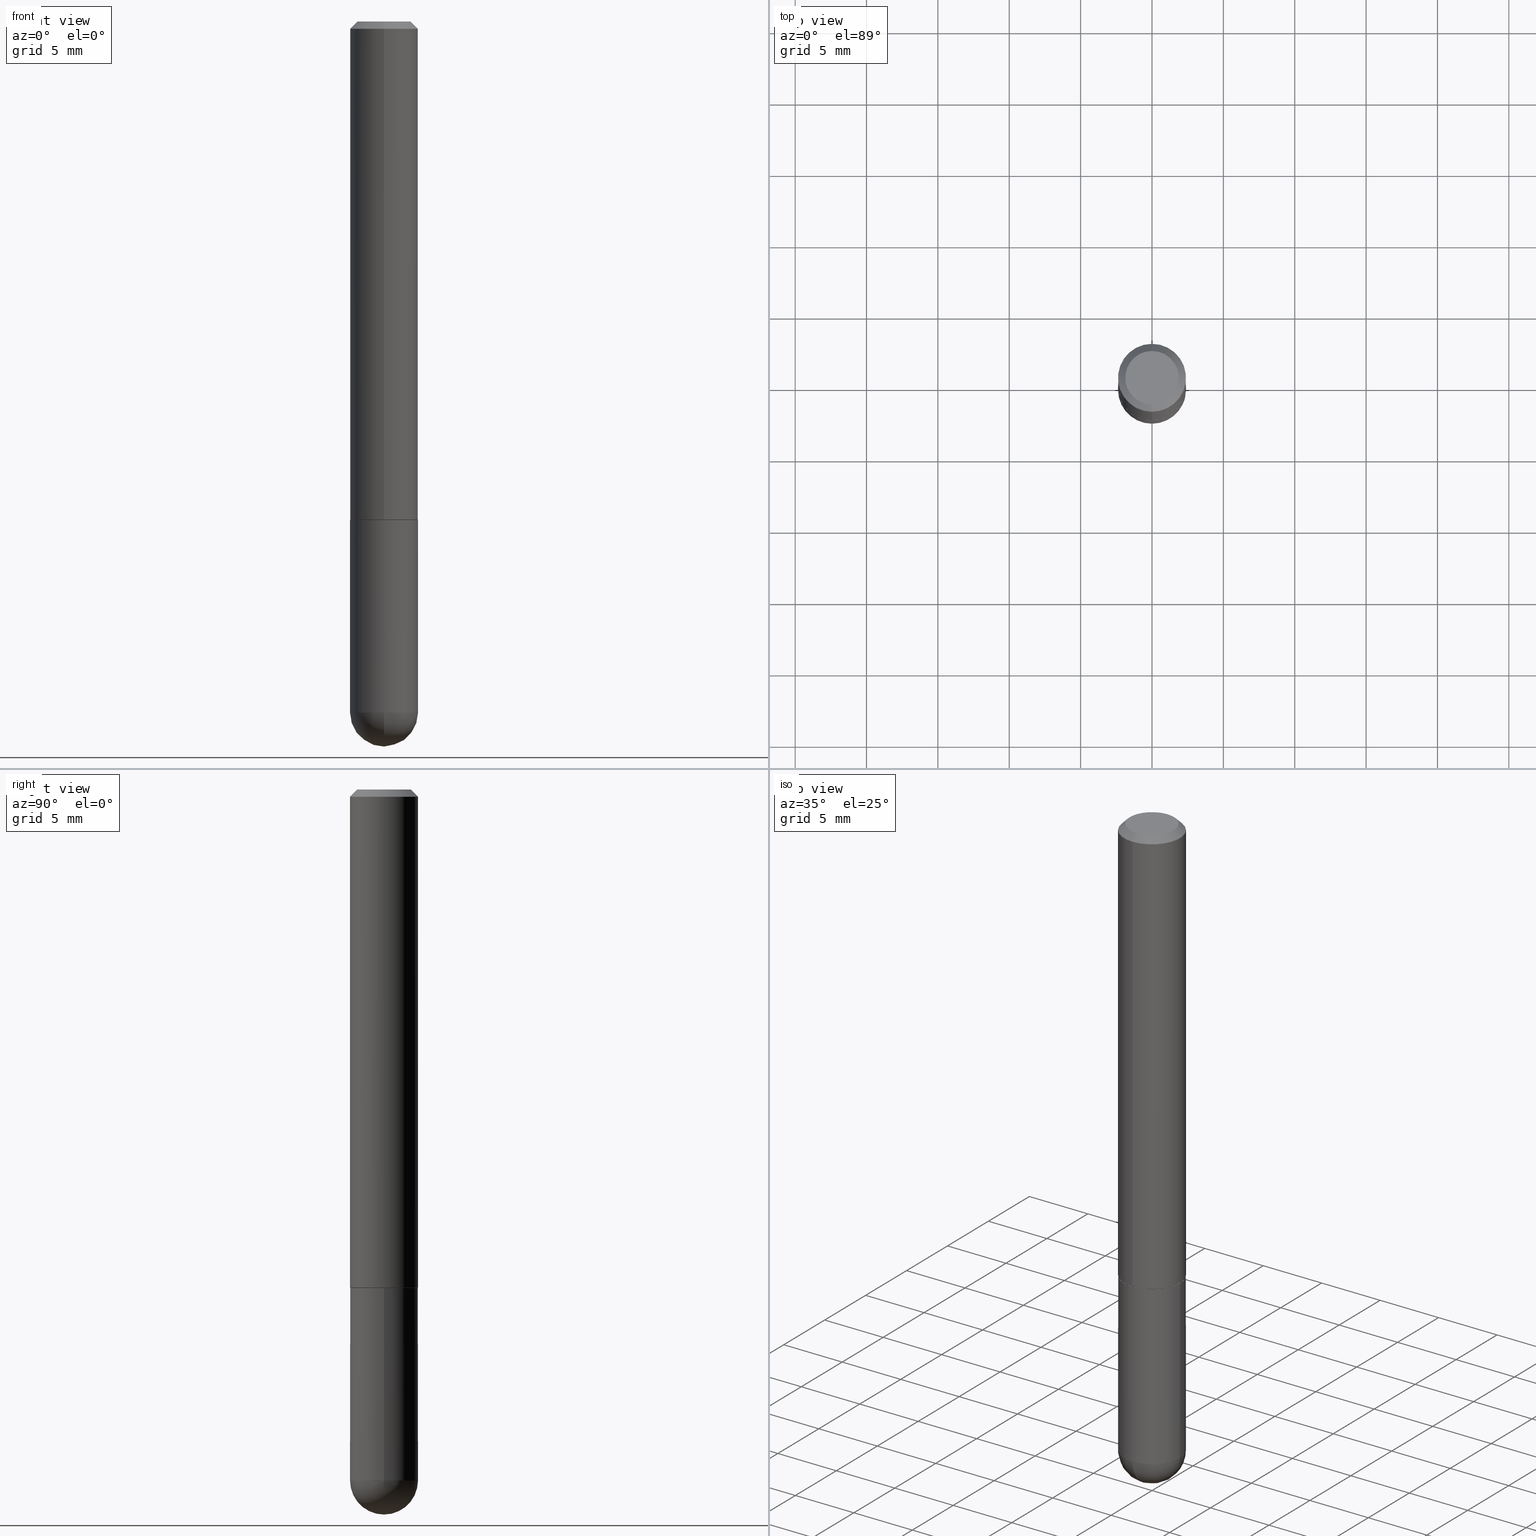
[diagram: canonical four-view strip — front | top / right | iso, engineering-drawing reading convention]
A machine part, canonical four-view strip (front | top / right | iso — engineering-drawing reading convention). The complete STEP part file that produces these views, byte-faithful:
ISO-10303-21;
HEADER;
FILE_DESCRIPTION (( 'STEP AP203' ),
    '1' );
FILE_NAME ('39124.STEP',
    '2024-02-21T19:22:24',
    ( '' ),
    ( '' ),
    'SwSTEP 2.0',
    'SolidWorks 2023',
    '' );
FILE_SCHEMA (( 'CONFIG_CONTROL_DESIGN' ));
ENDSEC;

DATA;
#1 = CARTESIAN_POINT ( 'NONE',  ( 4.330555133876530390E-29, -7.129818670309794948E-15, -1.906250000000000000 ) ) ;
#2 = DIRECTION ( 'NONE',  ( -4.937700262164843076E-15, -0.7071067811865873187, 0.7071067811865077157 ) ) ;
#3 = AXIS2_PLACEMENT_3D ( 'NONE', #318, #252, #277 ) ;
#4 = DIRECTION ( 'NONE',  ( -2.445468806185136597E-29, 3.491481338843145583E-15, 1.000000000000000000 ) ) ;
#5 = DIRECTION ( 'NONE',  ( -2.444797333483953649E-29, 3.492442925969092226E-15, 1.000000000000000000 ) ) ;
#6 = EDGE_LOOP ( 'NONE', ( #208, #407, #171, #248, #200 ) ) ;
#7 = DIRECTION ( 'NONE',  ( -6.982962677686265922E-15, -1.000000000000000000, 2.945388672414299892E-15 ) ) ;
#8 = ORIENTED_EDGE ( 'NONE', *, *, #254, .T. ) ;
#9 = VECTOR ( 'NONE', #18, 39.37007874015748143 ) ;
#10 = LOCAL_TIME ( 14, 22, 24.00000000000000000, #305 ) ;
#11 = EDGE_CURVE ( 'NONE', #240, #265, #228, .T. ) ;
#12 = ORIENTED_EDGE ( 'NONE', *, *, #333, .T. ) ;
#13 = ORIENTED_EDGE ( 'NONE', *, *, #193, .T. ) ;
#14 = MECHANICAL_CONTEXT ( 'NONE', #219, 'mechanical' ) ;
#15 = ORIENTED_EDGE ( 'NONE', *, *, #326, .T. ) ;
#16 = APPROVAL_PERSON_ORGANIZATION ( #124, #149, #342 ) ;
#17 = PERSON_AND_ORGANIZATION ( #257, #185 ) ;
#18 = DIRECTION ( 'NONE',  ( 4.937700262164540154E-15, 0.7071067811865440200, -0.7071067811865510144 ) ) ;
#19 = PERSON_AND_ORGANIZATION_ROLE ( 'creator' ) ;
#20 = DIRECTION ( 'NONE',  ( -2.445468806185136597E-29, 3.491481338843145583E-15, 1.000000000000000000 ) ) ;
#21 = ADVANCED_FACE ( 'NONE', ( #345 ), #245, .F. ) ;
#22 = SECURITY_CLASSIFICATION_LEVEL ( 'unclassified' ) ;
#23 = DIRECTION ( 'NONE',  ( -2.444797333483953089E-29, 3.492442925969092620E-15, 1.000000000000000000 ) ) ;
#24 = AXIS2_PLACEMENT_3D ( 'NONE', #221, #133, #353 ) ;
#25 = DIRECTION ( 'NONE',  ( -2.445468806185136597E-29, 3.491481338843145583E-15, 1.000000000000000000 ) ) ;
#26 = PRODUCT_DEFINITION_SHAPE ( 'NONE', 'NONE',  #98 ) ;
#27 = APPROVAL_STATUS ( 'not_yet_approved' ) ;
#28 = DIRECTION ( 'NONE',  ( -6.982962677686266711E-15, -1.000000000000000000, 3.505871591869138487E-15 ) ) ;
#29 = LINE ( 'NONE', #260, #46 ) ;
#30 = EDGE_CURVE ( 'NONE', #275, #244, #151, .T. ) ;
#31 = CIRCLE ( 'NONE', #3, 0.09375000000000001388 ) ;
#32 = CARTESIAN_POINT ( 'NONE',  ( 3.359151536206952494E-29, -4.798616580281532316E-15, -1.373999999999999888 ) ) ;
#33 = CARTESIAN_POINT ( 'NONE',  ( 6.546527510330878985E-16, 0.09374999999999991673, -0.02000000000000034736 ) ) ;
#34 = CC_DESIGN_DATE_AND_TIME_ASSIGNMENT ( #173, #91, ( #307 ) ) ;
#35 = DIRECTION ( 'NONE',  ( -6.982962677686266711E-15, -1.000000000000000000, 2.913971193241874850E-15 ) ) ;
#36 = LINE ( 'NONE', #158, #274 ) ;
#37 = AXIS2_PLACEMENT_3D ( 'NONE', #251, #93, #215 ) ;
#38 = AXIS2_PLACEMENT_3D ( 'NONE', #32, #256, #35 ) ;
#39 = DIRECTION ( 'NONE',  ( 5.024295867788362157E-15, 0.7071067811865922037, 0.7071067811865028307 ) ) ;
#40 = VERTEX_POINT ( 'NONE', #53 ) ;
#41 = LENGTH_MEASURE_WITH_UNIT ( LENGTH_MEASURE( 0.02539999999999999897 ), #197 );
#42 = ORIENTED_EDGE ( 'NONE', *, *, #301, .F. ) ;
#43 = FACE_OUTER_BOUND ( 'NONE', #332, .T. ) ;
#44 = ORIENTED_EDGE ( 'NONE', *, *, #49, .F. ) ;
#45 = AXIS2_PLACEMENT_3D ( 'NONE', #402, #178, #310 ) ;
#46 = VECTOR ( 'NONE', #66, 39.37007874015748143 ) ;
#47 = APPLICATION_PROTOCOL_DEFINITION ( 'international standard', 'config_control_design', 1994, #219 ) ;
#48 = ORIENTED_EDGE ( 'NONE', *, *, #11, .F. ) ;
#49 = EDGE_CURVE ( 'NONE', #265, #363, #31, .T. ) ;
#50 = CARTESIAN_POINT ( 'NONE',  ( 6.546527510331332580E-16, 0.09374999999999322764, -1.906250000000000222 ) ) ;
#51 = ORIENTED_EDGE ( 'NONE', *, *, #405, .T. ) ;
#52 = CALENDAR_DATE ( 2024, 21, 2 ) ;
#53 = CARTESIAN_POINT ( 'NONE',  ( 4.563826426436916486E-29, -7.451404513955337857E-15, -2.000000000000000444 ) ) ;
#54 = CIRCLE ( 'NONE', #299, 0.09375000000000019429 ) ;
#55 = CARTESIAN_POINT ( 'NONE',  ( 0.000000000000000000, 0.000000000000000000, 0.000000000000000000 ) ) ;
#56 = PERSON_AND_ORGANIZATION_ROLE ( 'design_supplier' ) ;
#57 = DIRECTION ( 'NONE',  ( -2.445468806185136597E-29, 3.491481338843145583E-15, 1.000000000000000000 ) ) ;
#58 = ADVANCED_FACE ( 'NONE', ( #350 ), #381, .T. ) ;
#59 = DATE_AND_TIME ( #377, #10 ) ;
#60 = CARTESIAN_POINT ( 'NONE',  ( 4.661674911790416638E-29, -6.655636302169745441E-15, -1.906250000000000000 ) ) ;
#61 = EDGE_CURVE ( 'NONE', #40, #328, #359, .T. ) ;
#62 = AXIS2_PLACEMENT_3D ( 'NONE', #302, #143, #204 ) ;
#63 = CARTESIAN_POINT ( 'NONE',  ( 4.889594666967911153E-31, -6.984885851938190023E-17, -0.02000000000000001776 ) ) ;
#64 = CC_DESIGN_PERSON_AND_ORGANIZATION_ASSIGNMENT ( #312, #56, ( #293 ) ) ;
#65 = DIRECTION ( 'NONE',  ( -2.445468806185136877E-29, 3.491481338843145188E-15, 1.000000000000000000 ) ) ;
#66 = DIRECTION ( 'NONE',  ( -4.851104656540956386E-15, -0.7071067811865489050, -0.7071067811865461294 ) ) ;
#67 = DIRECTION ( 'NONE',  ( -6.982962677686265922E-15, -1.000000000000000000, 3.492442925969091437E-15 ) ) ;
#68 = CC_DESIGN_PERSON_AND_ORGANIZATION_ASSIGNMENT ( #249, #207, ( #307 ) ) ;
#69 = UNCERTAINTY_MEASURE_WITH_UNIT (LENGTH_MEASURE( 1.000000000000000082E-05 ), #170, 'distance_accuracy_value', 'NONE');
#70 = CARTESIAN_POINT ( 'NONE',  ( 4.889594666967911153E-31, -6.984885851938190023E-17, -0.02000000000000001776 ) ) ;
#71 = CARTESIAN_POINT ( 'NONE',  ( 6.661338147750944173E-16, 0.09375000000000009714, -3.274165243096026796E-16 ) ) ;
#72 = DIRECTION ( 'NONE',  ( -7.105427357601001070E-15, -1.000000000000000000, 0.000000000000000000 ) ) ;
#73 = CIRCLE ( 'NONE', #366, 0.09274999999999999911 ) ;
#74 = APPROVAL ( #347, 'UNSPECIFIED' ) ;
#75 = ORIENTED_EDGE ( 'NONE', *, *, #241, .T. ) ;
#76 = DIRECTION ( 'NONE',  ( -2.444797333483953649E-29, 3.492442925969092226E-15, 1.000000000000000000 ) ) ;
#77 = EDGE_LOOP ( 'NONE', ( #142, #15, #296, #144 ) ) ;
#78 = DIRECTION ( 'NONE',  ( -2.444797333483953649E-29, 3.492442925969092226E-15, 1.000000000000000000 ) ) ;
#79 = ORIENTED_EDGE ( 'NONE', *, *, #159, .F. ) ;
#80 = AXIS2_PLACEMENT_3D ( 'NONE', #192, #262, #194 ) ;
#81 = CARTESIAN_POINT ( 'NONE',  ( 4.330555133876530390E-29, -7.129818670309794948E-15, -1.906250000000000000 ) ) ;
#82 = ORIENTED_EDGE ( 'NONE', *, *, #317, .F. ) ;
#83 = COORDINATED_UNIVERSAL_TIME_OFFSET ( 5, 0, .BEHIND. ) ;
#84 = EDGE_LOOP ( 'NONE', ( #209, #396, #13, #300 ) ) ;
#85 = MANIFOLD_SOLID_BREP ( 'Body-Move/Copy2[1]', #128 ) ;
#86 = DIMENSIONAL_EXPONENTS ( 1.000000000000000000, 0.000000000000000000, 0.000000000000000000, 0.000000000000000000, 0.000000000000000000, 0.000000000000000000, 0.000000000000000000 ) ;
#87 = DIRECTION ( 'NONE',  ( 1.000000000000000000, -6.982962677686261189E-15, 0.000000000000000000 ) ) ;
#88 = CONICAL_SURFACE ( 'NONE', #373, 0.09374999999999998612, 0.7853981633974468357 ) ;
#89 = CC_DESIGN_PERSON_AND_ORGANIZATION_ASSIGNMENT ( #368, #19, ( #98 ) ) ;
#90 = CARTESIAN_POINT ( 'NONE',  ( 6.546527510330878985E-16, 0.09374999999999991673, -0.02000000000000034736 ) ) ;
#91 = DATE_TIME_ROLE ( 'classification_date' ) ;
#92 = CARTESIAN_POINT ( 'NONE',  ( -6.431716872910804923E-16, -0.09375000000000005551, -0.01999999999999968817 ) ) ;
#93 = DIRECTION ( 'NONE',  ( -2.444797333483953649E-29, 3.492442925969092226E-15, 1.000000000000000000 ) ) ;
#94 = EDGE_CURVE ( 'NONE', #401, #237, #108, .T. ) ;
#95 = APPROVAL_PERSON_ORGANIZATION ( #358, #266, #403 ) ;
#96 = FACE_OUTER_BOUND ( 'NONE', #337, .T. ) ;
#97 = FACE_OUTER_BOUND ( 'NONE', #205, .T. ) ;
#98 = PRODUCT_DEFINITION ( 'UNKNOWN', '', #293, #103 ) ;
#99 = DIRECTION ( 'NONE',  ( 1.000000000000000000, -6.982962677686261189E-15, 0.000000000000000000 ) ) ;
#100 = CIRCLE ( 'NONE', #292, 0.09374999999999998612 ) ;
#101 = AXIS2_PLACEMENT_3D ( 'NONE', #357, #290, #294 ) ;
#102 = CARTESIAN_POINT ( 'NONE',  ( -0.09375000000000001388, -5.062077756764441261E-15, -1.375000000000000000 ) ) ;
#103 = DESIGN_CONTEXT ( 'detailed design', #236, 'design' ) ;
#104 = CARTESIAN_POINT ( 'NONE',  ( 3.359151536206952494E-29, -4.798616580281532316E-15, -1.373999999999999888 ) ) ;
#105 = PERSON_AND_ORGANIZATION_ROLE ( 'design_owner' ) ;
#106 = ADVANCED_FACE ( 'NONE', ( #153 ), #325, .T. ) ;
#107 = CARTESIAN_POINT ( 'NONE',  ( 5.149934974793623868E-16, 0.07375000000000005163, -2.660692322451522650E-16 ) ) ;
#108 = CIRCLE ( 'NONE', #175, 0.09375000000000001388 ) ;
#109 = CONICAL_SURFACE ( 'NONE', #335, 0.09274999999999999911, 0.7853981633975080090 ) ;
#110 = ORIENTED_EDGE ( 'NONE', *, *, #297, .T. ) ;
#111 = ORIENTED_EDGE ( 'NONE', *, *, #225, .T. ) ;
#112 = CARTESIAN_POINT ( 'NONE',  ( 6.590283874175264427E-16, 0.09274999999999521128, -1.375000000000000222 ) ) ;
#113 = CC_DESIGN_DATE_AND_TIME_ASSIGNMENT ( #59, #282, ( #98 ) ) ;
#114 = VERTEX_POINT ( 'NONE', #315 ) ;
#115 = CARTESIAN_POINT ( 'NONE',  ( 4.330555133876530390E-29, -7.129818670309794948E-15, -1.906250000000000000 ) ) ;
#116 = VERTEX_POINT ( 'NONE', #376 ) ;
#117 = AXIS2_PLACEMENT_3D ( 'NONE', #55, #57, #183 ) ;
#118 = CC_DESIGN_APPROVAL ( #149, ( #293 ) ) ;
#119 = ORIENTED_EDGE ( 'NONE', *, *, #311, .F. ) ;
#120 = CARTESIAN_POINT ( 'NONE',  ( 3.361596333540435988E-29, -4.802109023207501761E-15, -1.375000000000000000 ) ) ;
#121 = APPROVAL_DATE_TIME ( #152, #266 ) ;
#122 = CARTESIAN_POINT ( 'NONE',  ( 4.889594666967911153E-31, -6.984885851938190023E-17, -0.02000000000000001776 ) ) ;
#123 = AXIS2_PLACEMENT_3D ( 'NONE', #115, #164, #271 ) ;
#124 = PERSON_AND_ORGANIZATION ( #257, #185 ) ;
#125 = DIRECTION ( 'NONE',  ( 1.000000000000000000, -6.982962677686261189E-15, 0.000000000000000000 ) ) ;
#126 = CYLINDRICAL_SURFACE ( 'NONE', #37, 0.09375000000000009714 ) ;
#127 = DIRECTION ( 'NONE',  ( -6.982962677686265133E-15, -1.000000000000000000, 3.492442925969092226E-15 ) ) ;
#128 = CLOSED_SHELL ( 'NONE', ( #323, #212, #379, #220, #58 ) ) ;
#129 =( GEOMETRIC_REPRESENTATION_CONTEXT ( 3 ) GLOBAL_UNCERTAINTY_ASSIGNED_CONTEXT ( ( #69 ) ) GLOBAL_UNIT_ASSIGNED_CONTEXT ( ( #170, #268, #233 ) ) REPRESENTATION_CONTEXT ( 'NONE', 'WORKASPACE' ) );
#130 = DIRECTION ( 'NONE',  ( -6.982962677686265133E-15, -1.000000000000000000, 3.492442925969092226E-15 ) ) ;
#131 = CYLINDRICAL_SURFACE ( 'NONE', #80, 0.09375000000000001388 ) ;
#132 = LINE ( 'NONE', #383, #239 ) ;
#133 = DIRECTION ( 'NONE',  ( -2.445468806185136597E-29, 3.491481338843145583E-15, 1.000000000000000000 ) ) ;
#134 = CARTESIAN_POINT ( 'NONE',  ( 6.546527510331211293E-16, 0.09374999999999521216, -1.375000000000000222 ) ) ;
#135 = DIRECTION ( 'NONE',  ( -2.444797333483953649E-29, 3.492442925969092226E-15, 1.000000000000000000 ) ) ;
#136 = ORIENTED_EDGE ( 'NONE', *, *, #61, .T. ) ;
#137 = CARTESIAN_POINT ( 'NONE',  ( 3.361596333540435988E-29, -4.802109023207501761E-15, -1.375000000000000000 ) ) ;
#138 = AXIS2_PLACEMENT_3D ( 'NONE', #60, #25, #155 ) ;
#139 = ORIENTED_EDGE ( 'NONE', *, *, #388, .T. ) ;
#140 = EDGE_CURVE ( 'NONE', #275, #304, #247, .T. ) ;
#141 = DIRECTION ( 'NONE',  ( 6.982962677686265922E-15, 1.000000000000000000, -3.492442925969092620E-15 ) ) ;
#142 = ORIENTED_EDGE ( 'NONE', *, *, #232, .F. ) ;
#143 = DIRECTION ( 'NONE',  ( 0.000000000000000000, 0.000000000000000000, 1.000000000000000000 ) ) ;
#144 = ORIENTED_EDGE ( 'NONE', *, *, #254, .F. ) ;
#145 = PERSON_AND_ORGANIZATION ( #257, #185 ) ;
#146 = ORIENTED_EDGE ( 'NONE', *, *, #49, .T. ) ;
#147 = LOCAL_TIME ( 14, 22, 24.00000000000000000, #309 ) ;
#148 = EDGE_LOOP ( 'NONE', ( #308, #330 ) ) ;
#149 = APPROVAL ( #27, 'UNSPECIFIED' ) ;
#150 = DATE_AND_TIME ( #182, #177 ) ;
#151 = LINE ( 'NONE', #90, #9 ) ;
#152 = DATE_AND_TIME ( #400, #147 ) ;
#153 = FACE_OUTER_BOUND ( 'NONE', #84, .T. ) ;
#154 = CIRCLE ( 'NONE', #201, 0.09374999999999998612 ) ;
#155 = DIRECTION ( 'NONE',  ( 1.000000000000000000, -6.982962677686261189E-15, 0.000000000000000000 ) ) ;
#156 = FACE_OUTER_BOUND ( 'NONE', #198, .T. ) ;
#157 = DIRECTION ( 'NONE',  ( -2.445468806185136877E-29, 3.491481338843145188E-15, 1.000000000000000000 ) ) ;
#158 = CARTESIAN_POINT ( 'NONE',  ( -6.476697883553675688E-16, -0.09275000000000480083, -1.374999999999999778 ) ) ;
#159 = EDGE_CURVE ( 'NONE', #114, #167, #346, .T. ) ;
#160 = CARTESIAN_POINT ( 'NONE',  ( -6.661338147750496494E-16, -0.09375000000000702216, -1.906249999999999556 ) ) ;
#161 = DIRECTION ( 'NONE',  ( -2.444797333483953649E-29, 3.492442925969092226E-15, 1.000000000000000000 ) ) ;
#162 = APPROVAL_PERSON_ORGANIZATION ( #17, #74, #213 ) ;
#163 = DIRECTION ( 'NONE',  ( -2.444797333483953649E-29, 3.492442925969092226E-15, 1.000000000000000000 ) ) ;
#164 = DIRECTION ( 'NONE',  ( -1.000000000000000000, 6.982962677686265133E-15, -4.883557194083112901E-29 ) ) ;
#165 = ORIENTED_EDGE ( 'NONE', *, *, #283, .F. ) ;
#166 = CARTESIAN_POINT ( 'NONE',  ( 3.361596333540435988E-29, -4.802109023207501761E-15, -1.375000000000000000 ) ) ;
#167 = VERTEX_POINT ( 'NONE', #92 ) ;
#168 = VECTOR ( 'NONE', #39, 39.37007874015748143 ) ;
#169 = ORIENTED_EDGE ( 'NONE', *, *, #283, .T. ) ;
#170 =( CONVERSION_BASED_UNIT ( 'INCH', #41 ) LENGTH_UNIT ( ) NAMED_UNIT ( #86 ) );
#171 = ORIENTED_EDGE ( 'NONE', *, *, #94, .F. ) ;
#172 = VERTEX_POINT ( 'NONE', #214 ) ;
#173 = DATE_AND_TIME ( #52, #360 ) ;
#174 = EDGE_CURVE ( 'NONE', #363, #328, #216, .T. ) ;
#175 = AXIS2_PLACEMENT_3D ( 'NONE', #408, #20, #125 ) ;
#176 = CARTESIAN_POINT ( 'NONE',  ( 4.156921399890651466E-46, -5.938247125036358408E-32, -1.700313290986308217E-17 ) ) ;
#177 = LOCAL_TIME ( 14, 22, 24.00000000000000000, #242 ) ;
#178 = DIRECTION ( 'NONE',  ( 1.000000000000000000, -6.982962677686265922E-15, 4.883557194083112340E-29 ) ) ;
#179 = DATE_AND_TIME ( #339, #306 ) ;
#180 = CARTESIAN_POINT ( 'NONE',  ( -6.546527510330880958E-16, -0.09375000000000009714, 3.274165243096026796E-16 ) ) ;
#181 = ADVANCED_FACE ( 'NONE', ( #284 ), #126, .T. ) ;
#182 = CALENDAR_DATE ( 2024, 21, 2 ) ;
#183 = DIRECTION ( 'NONE',  ( 1.000000000000000000, -6.982962677686265922E-15, 4.876176775795935793E-29 ) ) ;
#184 = AXIS2_PLACEMENT_3D ( 'NONE', #372, #285, #87 ) ;
#185 = ORGANIZATION ( 'UNSPECIFIED', 'UNSPECIFIED', '' ) ;
#186 = DIRECTION ( 'NONE',  ( -2.444797333483953649E-29, 3.492442925969092226E-15, 1.000000000000000000 ) ) ;
#187 = DIRECTION ( 'NONE',  ( -1.000000000000000000, 6.982962677686265133E-15, -4.883557194083112901E-29 ) ) ;
#188 = CARTESIAN_POINT ( 'NONE',  ( -0.09375000000000001388, 6.661338147750940229E-16, -4.611501647113973995E-30 ) ) ;
#189 = CC_DESIGN_PERSON_AND_ORGANIZATION_ASSIGNMENT ( #278, #371, ( #293 ) ) ;
#190 = AXIS2_PLACEMENT_3D ( 'NONE', #1, #187, #322 ) ;
#191 = SPHERICAL_SURFACE ( 'NONE', #190, 0.09375000000000026368 ) ;
#192 = CARTESIAN_POINT ( 'NONE',  ( 0.000000000000000000, 0.000000000000000000, 0.000000000000000000 ) ) ;
#193 = EDGE_CURVE ( 'NONE', #167, #244, #100, .T. ) ;
#194 = DIRECTION ( 'NONE',  ( 1.000000000000000000, -6.982962677686265922E-15, 4.876176775795935793E-29 ) ) ;
#195 = CIRCLE ( 'NONE', #288, 0.07375000000000005163 ) ;
#196 = CARTESIAN_POINT ( 'NONE',  ( 0.09375000000000001388, -5.455439591942412434E-15, -1.375000000000000000 ) ) ;
#197 =( LENGTH_UNIT ( ) NAMED_UNIT ( * ) SI_UNIT ( $, .METRE. ) );
#198 = EDGE_LOOP ( 'NONE', ( #42, #298, #272, #8 ) ) ;
#199 = DIRECTION ( 'NONE',  ( -1.000000000000000000, 7.105427357601001070E-15, -4.926315508542082329E-29 ) ) ;
#200 = ORIENTED_EDGE ( 'NONE', *, *, #174, .T. ) ;
#201 = AXIS2_PLACEMENT_3D ( 'NONE', #70, #163, #263 ) ;
#202 = ORIENTED_EDGE ( 'NONE', *, *, #94, .T. ) ;
#203 = ADVANCED_FACE ( 'NONE', ( #156 ), #88, .T. ) ;
#204 = DIRECTION ( 'NONE',  ( 1.000000000000000000, 0.000000000000000000, 0.000000000000000000 ) ) ;
#205 = EDGE_LOOP ( 'NONE', ( #202, #169 ) ) ;
#206 = ADVANCED_FACE ( 'NONE', ( #96 ), #356, .T. ) ;
#207 = PERSON_AND_ORGANIZATION_ROLE ( 'classification_officer' ) ;
#208 = ORIENTED_EDGE ( 'NONE', *, *, #317, .T. ) ;
#209 = ORIENTED_EDGE ( 'NONE', *, *, #259, .F. ) ;
#210 = CONICAL_SURFACE ( 'NONE', #281, 0.09274999999999999911, 0.7853981633975080090 ) ;
#211 = DIRECTION ( 'NONE',  ( -2.444797333483953649E-29, 3.492442925969092226E-15, 1.000000000000000000 ) ) ;
#212 = ADVANCED_FACE ( 'NONE', ( #286 ), #191, .T. ) ;
#213 = APPROVAL_ROLE ( '' ) ;
#214 = CARTESIAN_POINT ( 'NONE',  ( 6.625811010963275384E-16, 0.09274999999999521128, -1.375000000000000222 ) ) ;
#215 = DIRECTION ( 'NONE',  ( -6.982962677686265922E-15, -1.000000000000000000, 3.492442925969091437E-15 ) ) ;
#216 = CIRCLE ( 'NONE', #138, 0.09375000000000001388 ) ;
#217 = EDGE_CURVE ( 'NONE', #114, #303, #355, .T. ) ;
#218 = CARTESIAN_POINT ( 'NONE',  ( -5.745667073133655554E-16, -0.07375000000000005163, 2.405645328803576480E-16 ) ) ;
#219 = APPLICATION_CONTEXT ( 'configuration controlled 3d designs of mechanical parts and assemblies' ) ;
#220 = ADVANCED_FACE ( 'NONE', ( #97 ), #324, .F. ) ;
#221 = CARTESIAN_POINT ( 'NONE',  ( 3.362519608504562260E-29, -4.800786840909324930E-15, -1.375000000000000000 ) ) ;
#222 = DIRECTION ( 'NONE',  ( -2.444797333483953649E-29, 3.492442925969092620E-15, 1.000000000000000000 ) ) ;
#223 = AXIS2_PLACEMENT_3D ( 'NONE', #81, #199, #72 ) ;
#224 = FACE_OUTER_BOUND ( 'NONE', #6, .T. ) ;
#225 = EDGE_CURVE ( 'NONE', #116, #114, #36, .T. ) ;
#226 = DIRECTION ( 'NONE',  ( -2.444797333483953649E-29, 3.492442925969092226E-15, 1.000000000000000000 ) ) ;
#227 = APPLICATION_PROTOCOL_DEFINITION ( 'international standard', 'config_control_design', 1994, #236 ) ;
#228 = CIRCLE ( 'NONE', #184, 0.09375000000000001388 ) ;
#229 = VECTOR ( 'NONE', #65, 39.37007874015748143 ) ;
#230 = SPHERICAL_SURFACE ( 'NONE', #123, 0.09375000000000026368 ) ;
#231 = EDGE_LOOP ( 'NONE', ( #361, #394 ) ) ;
#232 = EDGE_CURVE ( 'NONE', #303, #244, #352, .T. ) ;
#233 =( NAMED_UNIT ( * ) SI_UNIT ( $, .STERADIAN. ) SOLID_ANGLE_UNIT ( ) );
#234 = EDGE_LOOP ( 'NONE', ( #270, #139, #48, #82 ) ) ;
#235 = DIRECTION ( 'NONE',  ( 2.444797333483953089E-29, -3.492442925969092620E-15, -1.000000000000000000 ) ) ;
#236 = APPLICATION_CONTEXT ( 'configuration controlled 3d designs of mechanical parts and assemblies' ) ;
#237 = VERTEX_POINT ( 'NONE', #102 ) ;
#238 = CARTESIAN_POINT ( 'NONE',  ( 0.09375000000000001388, -6.382864322572621901E-15, -1.906250000000000000 ) ) ;
#239 = VECTOR ( 'NONE', #157, 39.37007874015748143 ) ;
#240 = VERTEX_POINT ( 'NONE', #387 ) ;
#241 = EDGE_CURVE ( 'NONE', #363, #401, #132, .T. ) ;
#242 = COORDINATED_UNIVERSAL_TIME_OFFSET ( 5, 0, .BEHIND. ) ;
#243 = ADVANCED_BREP_SHAPE_REPRESENTATION ( '39124', ( #85, #362, #62 ), #129 ) ;
#244 = VERTEX_POINT ( 'NONE', #33 ) ;
#245 = PLANE ( 'NONE',  #334 ) ;
#246 = APPROVAL_DATE_TIME ( #179, #149 ) ;
#247 = CIRCLE ( 'NONE', #287, 0.07375000000000005163 ) ;
#248 = ORIENTED_EDGE ( 'NONE', *, *, #241, .F. ) ;
#249 = PERSON_AND_ORGANIZATION ( #257, #185 ) ;
#250 = ORIENTED_EDGE ( 'NONE', *, *, #225, .F. ) ;
#251 = CARTESIAN_POINT ( 'NONE',  ( 0.000000000000000000, 0.000000000000000000, 0.000000000000000000 ) ) ;
#252 = DIRECTION ( 'NONE',  ( -2.445468806185136597E-29, 3.491481338843145583E-15, 1.000000000000000000 ) ) ;
#253 = CC_DESIGN_APPROVAL ( #74, ( #307 ) ) ;
#254 = EDGE_CURVE ( 'NONE', #244, #167, #154, .T. ) ;
#255 = PRODUCT ( '39124', '39124', '', ( #14 ) ) ;
#256 = DIRECTION ( 'NONE',  ( -2.444797333483953649E-29, 3.492442925969092226E-15, 1.000000000000000000 ) ) ;
#257 = PERSON ( 'UNSPECIFIED', 'UNSPECIFIED', 'UNSPECIFIED', ('UNSPECIFIED'), ('UNSPECIFIED'), ('UNSPECIFIED') ) ;
#258 = ORIENTED_EDGE ( 'NONE', *, *, #11, .T. ) ;
#259 = EDGE_CURVE ( 'NONE', #304, #275, #195, .T. ) ;
#260 = CARTESIAN_POINT ( 'NONE',  ( -6.431716872910804923E-16, -0.09375000000000005551, -0.01999999999999968817 ) ) ;
#261 = AXIS2_PLACEMENT_3D ( 'NONE', #320, #4, #99 ) ;
#262 = DIRECTION ( 'NONE',  ( -2.445468806185136597E-29, 3.491481338843145583E-15, 1.000000000000000000 ) ) ;
#263 = DIRECTION ( 'NONE',  ( -6.982962677686266711E-15, -1.000000000000000000, 3.505871591869138487E-15 ) ) ;
#264 = PLANE ( 'NONE',  #351 ) ;
#265 = VERTEX_POINT ( 'NONE', #160 ) ;
#266 = APPROVAL ( #374, 'UNSPECIFIED' ) ;
#267 = AXIS2_PLACEMENT_3D ( 'NONE', #354, #226, #67 ) ;
#268 =( NAMED_UNIT ( * ) PLANE_ANGLE_UNIT ( ) SI_UNIT ( $, .RADIAN. ) );
#269 = ORIENTED_EDGE ( 'NONE', *, *, #193, .F. ) ;
#270 = ORIENTED_EDGE ( 'NONE', *, *, #61, .F. ) ;
#271 = DIRECTION ( 'NONE',  ( 6.982962677686265133E-15, 1.000000000000000000, -2.913971193241872483E-15 ) ) ;
#272 = ORIENTED_EDGE ( 'NONE', *, *, #30, .T. ) ;
#273 = SHAPE_DEFINITION_REPRESENTATION ( #26, #243 ) ;
#274 = VECTOR ( 'NONE', #2, 39.37007874015748143 ) ;
#275 = VERTEX_POINT ( 'NONE', #412 ) ;
#276 = ORIENTED_EDGE ( 'NONE', *, *, #388, .F. ) ;
#277 = DIRECTION ( 'NONE',  ( 1.000000000000000000, -6.982962677686261189E-15, 0.000000000000000000 ) ) ;
#278 = PERSON_AND_ORGANIZATION ( #257, #185 ) ;
#279 = VECTOR ( 'NONE', #378, 39.37007874015748143 ) ;
#280 = DIRECTION ( 'NONE',  ( 2.444797333483953649E-29, -3.492442925969092226E-15, -1.000000000000000000 ) ) ;
#281 = AXIS2_PLACEMENT_3D ( 'NONE', #137, #76, #295 ) ;
#282 = DATE_TIME_ROLE ( 'creation_date' ) ;
#283 = EDGE_CURVE ( 'NONE', #237, #401, #375, .T. ) ;
#284 = FACE_OUTER_BOUND ( 'NONE', #77, .T. ) ;
#285 = DIRECTION ( 'NONE',  ( -2.445468806185136597E-29, 3.491481338843145583E-15, 1.000000000000000000 ) ) ;
#286 = FACE_OUTER_BOUND ( 'NONE', #234, .T. ) ;
#287 = AXIS2_PLACEMENT_3D ( 'NONE', #176, #211, #127 ) ;
#288 = AXIS2_PLACEMENT_3D ( 'NONE', #384, #161, #130 ) ;
#289 = DIRECTION ( 'NONE',  ( 2.444797333483953649E-29, -3.492442925969092226E-15, -1.000000000000000000 ) ) ;
#290 = DIRECTION ( 'NONE',  ( -2.444797333483953649E-29, 3.492442925969092226E-15, 1.000000000000000000 ) ) ;
#291 = DIRECTION ( 'NONE',  ( 6.982962677686266711E-15, 1.000000000000000000, -3.505871591869138487E-15 ) ) ;
#292 = AXIS2_PLACEMENT_3D ( 'NONE', #63, #186, #28 ) ;
#293 = PRODUCT_DEFINITION_FORMATION_WITH_SPECIFIED_SOURCE ( 'ANY', '', #255, .NOT_KNOWN. ) ;
#294 = DIRECTION ( 'NONE',  ( -6.982962677686265922E-15, -1.000000000000000000, 2.945388672414299892E-15 ) ) ;
#295 = DIRECTION ( 'NONE',  ( -6.982962677686265922E-15, -1.000000000000000000, 2.945388672414299892E-15 ) ) ;
#296 = ORIENTED_EDGE ( 'NONE', *, *, #159, .T. ) ;
#297 = EDGE_CURVE ( 'NONE', #116, #172, #404, .T. ) ;
#298 = ORIENTED_EDGE ( 'NONE', *, *, #140, .F. ) ;
#299 = AXIS2_PLACEMENT_3D ( 'NONE', #104, #5, #389 ) ;
#300 = ORIENTED_EDGE ( 'NONE', *, *, #30, .F. ) ;
#301 = EDGE_CURVE ( 'NONE', #304, #167, #29, .T. ) ;
#302 = CARTESIAN_POINT ( 'NONE',  ( 0.000000000000000000, 0.000000000000000000, 0.000000000000000000 ) ) ;
#303 = VERTEX_POINT ( 'NONE', #410 ) ;
#304 = VERTEX_POINT ( 'NONE', #218 ) ;
#305 = COORDINATED_UNIVERSAL_TIME_OFFSET ( 5, 0, .BEHIND. ) ;
#306 = LOCAL_TIME ( 14, 22, 24.00000000000000000, #83 ) ;
#307 = SECURITY_CLASSIFICATION ( '', '', #22 ) ;
#308 = ORIENTED_EDGE ( 'NONE', *, *, #297, .F. ) ;
#309 = COORDINATED_UNIVERSAL_TIME_OFFSET ( 5, 0, .BEHIND. ) ;
#310 = DIRECTION ( 'NONE',  ( 6.982962677686265133E-15, 1.000000000000000000, 0.000000000000000000 ) ) ;
#311 = EDGE_CURVE ( 'NONE', #240, #237, #385, .T. ) ;
#312 = PERSON_AND_ORGANIZATION ( #257, #185 ) ;
#313 = ORIENTED_EDGE ( 'NONE', *, *, #217, .T. ) ;
#314 = APPROVAL_DATE_TIME ( #150, #74 ) ;
#315 = CARTESIAN_POINT ( 'NONE',  ( -6.546527510330552594E-16, -0.09375000000000499600, -1.373999999999999666 ) ) ;
#316 = CIRCLE ( 'NONE', #223, 0.09375000000000026368 ) ;
#317 = EDGE_CURVE ( 'NONE', #328, #240, #343, .T. ) ;
#318 = CARTESIAN_POINT ( 'NONE',  ( 4.661674911790416638E-29, -6.655636302169745441E-15, -1.906250000000000000 ) ) ;
#319 = DIRECTION ( 'NONE',  ( 2.438088387897960049E-29, -3.491481338843145188E-15, -1.000000000000000000 ) ) ;
#320 = CARTESIAN_POINT ( 'NONE',  ( 4.661674911790416638E-29, -6.655636302169745441E-15, -1.906250000000000000 ) ) ;
#321 = DIRECTION ( 'NONE',  ( -1.000000000000000000, 6.982962677686265922E-15, -4.876176775795935793E-29 ) ) ;
#322 = DIRECTION ( 'NONE',  ( 6.982962677686265133E-15, 1.000000000000000000, -2.913971193241872483E-15 ) ) ;
#323 = ADVANCED_FACE ( 'NONE', ( #224 ), #131, .T. ) ;
#324 = PLANE ( 'NONE',  #386 ) ;
#325 = CONICAL_SURFACE ( 'NONE', #341, 0.09374999999999998612, 0.7853981633974468357 ) ;
#326 = EDGE_CURVE ( 'NONE', #303, #114, #54, .T. ) ;
#327 = DIRECTION ( 'NONE',  ( -6.982962677686265922E-15, -1.000000000000000000, 2.945388672414299892E-15 ) ) ;
#328 = VERTEX_POINT ( 'NONE', #50 ) ;
#329 = FACE_OUTER_BOUND ( 'NONE', #365, .T. ) ;
#330 = ORIENTED_EDGE ( 'NONE', *, *, #405, .F. ) ;
#331 = CARTESIAN_POINT ( 'NONE',  ( 3.361596333540435988E-29, -4.802109023207501761E-15, -1.375000000000000000 ) ) ;
#332 = EDGE_LOOP ( 'NONE', ( #276, #136, #392, #44 ) ) ;
#333 = EDGE_CURVE ( 'NONE', #172, #303, #395, .T. ) ;
#334 = AXIS2_PLACEMENT_3D ( 'NONE', #120, #23, #348 ) ;
#335 = AXIS2_PLACEMENT_3D ( 'NONE', #166, #135, #327 ) ;
#336 = FACE_OUTER_BOUND ( 'NONE', #231, .T. ) ;
#337 = EDGE_LOOP ( 'NONE', ( #313, #380, #269, #79 ) ) ;
#338 = EDGE_LOOP ( 'NONE', ( #119, #258, #146, #75, #165 ) ) ;
#339 = CALENDAR_DATE ( 2024, 21, 2 ) ;
#340 = CARTESIAN_POINT ( 'NONE',  ( 4.889594666967911153E-31, -6.984885851938190023E-17, -0.02000000000000001776 ) ) ;
#341 = AXIS2_PLACEMENT_3D ( 'NONE', #122, #280, #406 ) ;
#342 = APPROVAL_ROLE ( '' ) ;
#343 = CIRCLE ( 'NONE', #261, 0.09375000000000001388 ) ;
#344 = ADVANCED_FACE ( 'NONE', ( #329 ), #109, .T. ) ;
#345 = FACE_OUTER_BOUND ( 'NONE', #148, .T. ) ;
#346 = LINE ( 'NONE', #180, #279 ) ;
#347 = APPROVAL_STATUS ( 'not_yet_approved' ) ;
#348 = DIRECTION ( 'NONE',  ( -6.982962677686265922E-15, -1.000000000000000000, 3.492442925969092620E-15 ) ) ;
#349 = COORDINATED_UNIVERSAL_TIME_OFFSET ( 5, 0, .BEHIND. ) ;
#350 = FACE_OUTER_BOUND ( 'NONE', #338, .T. ) ;
#351 = AXIS2_PLACEMENT_3D ( 'NONE', #107, #235, #141 ) ;
#352 = LINE ( 'NONE', #71, #391 ) ;
#353 = DIRECTION ( 'NONE',  ( 1.000000000000000000, -6.982962677686261189E-15, 0.000000000000000000 ) ) ;
#354 = CARTESIAN_POINT ( 'NONE',  ( 0.000000000000000000, 0.000000000000000000, 0.000000000000000000 ) ) ;
#355 = CIRCLE ( 'NONE', #38, 0.09375000000000019429 ) ;
#356 = CYLINDRICAL_SURFACE ( 'NONE', #267, 0.09375000000000009714 ) ;
#357 = CARTESIAN_POINT ( 'NONE',  ( 3.361596333540435988E-29, -4.802109023207501761E-15, -1.375000000000000000 ) ) ;
#358 = PERSON_AND_ORGANIZATION ( #257, #185 ) ;
#359 = CIRCLE ( 'NONE', #45, 0.09375000000000026368 ) ;
#360 = LOCAL_TIME ( 14, 22, 24.00000000000000000, #349 ) ;
#361 = ORIENTED_EDGE ( 'NONE', *, *, #140, .T. ) ;
#362 = MANIFOLD_SOLID_BREP ( 'Body-Move/Copy2[2]', #409 ) ;
#363 = VERTEX_POINT ( 'NONE', #238 ) ;
#364 = FACE_OUTER_BOUND ( 'NONE', #390, .T. ) ;
#365 = EDGE_LOOP ( 'NONE', ( #110, #12, #369, #250 ) ) ;
#366 = AXIS2_PLACEMENT_3D ( 'NONE', #331, #78, #7 ) ;
#367 = ORIENTED_EDGE ( 'NONE', *, *, #333, .F. ) ;
#368 = PERSON_AND_ORGANIZATION ( #257, #185 ) ;
#369 = ORIENTED_EDGE ( 'NONE', *, *, #217, .F. ) ;
#370 = ADVANCED_FACE ( 'NONE', ( #336 ), #264, .F. ) ;
#371 = PERSON_AND_ORGANIZATION_ROLE ( 'creator' ) ;
#372 = CARTESIAN_POINT ( 'NONE',  ( 4.661674911790416638E-29, -6.655636302169745441E-15, -1.906250000000000000 ) ) ;
#373 = AXIS2_PLACEMENT_3D ( 'NONE', #340, #289, #291 ) ;
#374 = APPROVAL_STATUS ( 'not_yet_approved' ) ;
#375 = CIRCLE ( 'NONE', #24, 0.09375000000000001388 ) ;
#376 = CARTESIAN_POINT ( 'NONE',  ( -6.476697883553675688E-16, -0.09275000000000480083, -1.374999999999999778 ) ) ;
#377 = CALENDAR_DATE ( 2024, 21, 2 ) ;
#378 = DIRECTION ( 'NONE',  ( -2.444797333483953649E-29, 3.492442925969092620E-15, 1.000000000000000000 ) ) ;
#379 = ADVANCED_FACE ( 'NONE', ( #43 ), #230, .T. ) ;
#380 = ORIENTED_EDGE ( 'NONE', *, *, #232, .T. ) ;
#381 = CYLINDRICAL_SURFACE ( 'NONE', #117, 0.09375000000000001388 ) ;
#382 = CC_DESIGN_APPROVAL ( #266, ( #98 ) ) ;
#383 = CARTESIAN_POINT ( 'NONE',  ( 0.09375000000000001388, -6.546527510330875041E-16, 4.571415727308690506E-30 ) ) ;
#384 = CARTESIAN_POINT ( 'NONE',  ( 4.156921399890651466E-46, -5.938247125036358408E-32, -1.700313290986308217E-17 ) ) ;
#385 = LINE ( 'NONE', #188, #229 ) ;
#386 = AXIS2_PLACEMENT_3D ( 'NONE', #134, #319, #321 ) ;
#387 = CARTESIAN_POINT ( 'NONE',  ( -0.09375000000000001388, -5.062077756764441261E-15, -1.906250000000000000 ) ) ;
#388 = EDGE_CURVE ( 'NONE', #40, #265, #316, .T. ) ;
#389 = DIRECTION ( 'NONE',  ( -6.982962677686266711E-15, -1.000000000000000000, 2.913971193241874850E-15 ) ) ;
#390 = EDGE_LOOP ( 'NONE', ( #367, #51, #111, #398 ) ) ;
#391 = VECTOR ( 'NONE', #222, 39.37007874015748143 ) ;
#392 = ORIENTED_EDGE ( 'NONE', *, *, #174, .F. ) ;
#393 = ADVANCED_FACE ( 'NONE', ( #364 ), #210, .T. ) ;
#394 = ORIENTED_EDGE ( 'NONE', *, *, #259, .T. ) ;
#395 = LINE ( 'NONE', #112, #168 ) ;
#396 = ORIENTED_EDGE ( 'NONE', *, *, #301, .T. ) ;
#397 = CC_DESIGN_SECURITY_CLASSIFICATION ( #307, ( #293 ) ) ;
#398 = ORIENTED_EDGE ( 'NONE', *, *, #326, .F. ) ;
#399 = CC_DESIGN_PERSON_AND_ORGANIZATION_ASSIGNMENT ( #145, #105, ( #255 ) ) ;
#400 = CALENDAR_DATE ( 2024, 21, 2 ) ;
#401 = VERTEX_POINT ( 'NONE', #196 ) ;
#402 = CARTESIAN_POINT ( 'NONE',  ( 4.330555133876530390E-29, -7.129818670309794948E-15, -1.906250000000000000 ) ) ;
#403 = APPROVAL_ROLE ( '' ) ;
#404 = CIRCLE ( 'NONE', #101, 0.09274999999999999911 ) ;
#405 = EDGE_CURVE ( 'NONE', #172, #116, #73, .T. ) ;
#406 = DIRECTION ( 'NONE',  ( 6.982962677686266711E-15, 1.000000000000000000, -3.505871591869138487E-15 ) ) ;
#407 = ORIENTED_EDGE ( 'NONE', *, *, #311, .T. ) ;
#408 = CARTESIAN_POINT ( 'NONE',  ( 3.362519608504562260E-29, -4.800786840909324930E-15, -1.375000000000000000 ) ) ;
#409 = CLOSED_SHELL ( 'NONE', ( #344, #206, #106, #203, #181, #393, #21, #370 ) ) ;
#410 = CARTESIAN_POINT ( 'NONE',  ( 6.661338147751117722E-16, 0.09374999999999537870, -1.374000000000000110 ) ) ;
#411 = PRODUCT_RELATED_PRODUCT_CATEGORY ( 'detail', '', ( #255 ) ) ;
#412 = CARTESIAN_POINT ( 'NONE',  ( 5.848231242562251920E-16, 0.07375000000000005163, -2.745707987000838369E-16 ) ) ;
ENDSEC;
END-ISO-10303-21;
